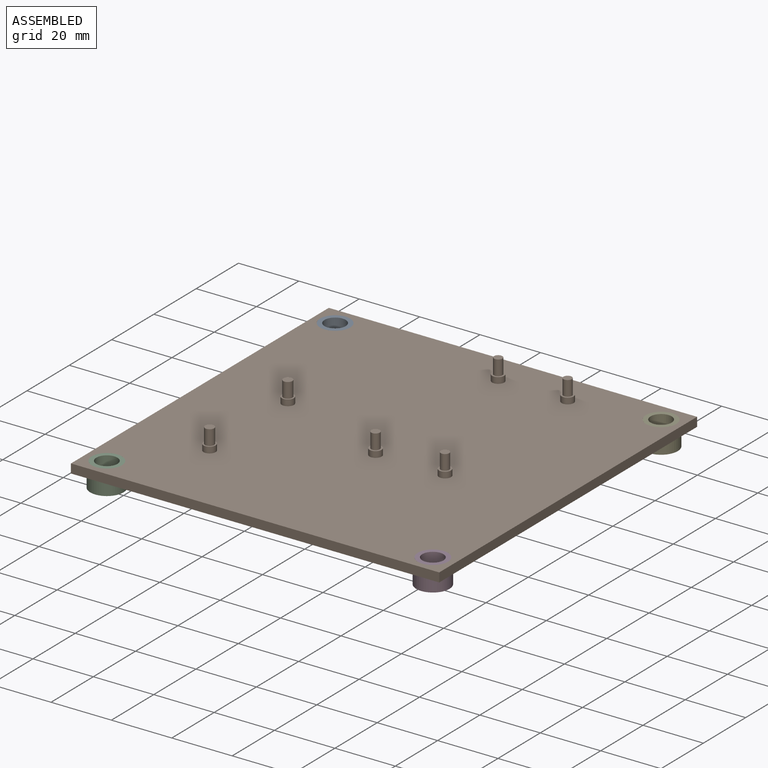
[diagram: assembled view]
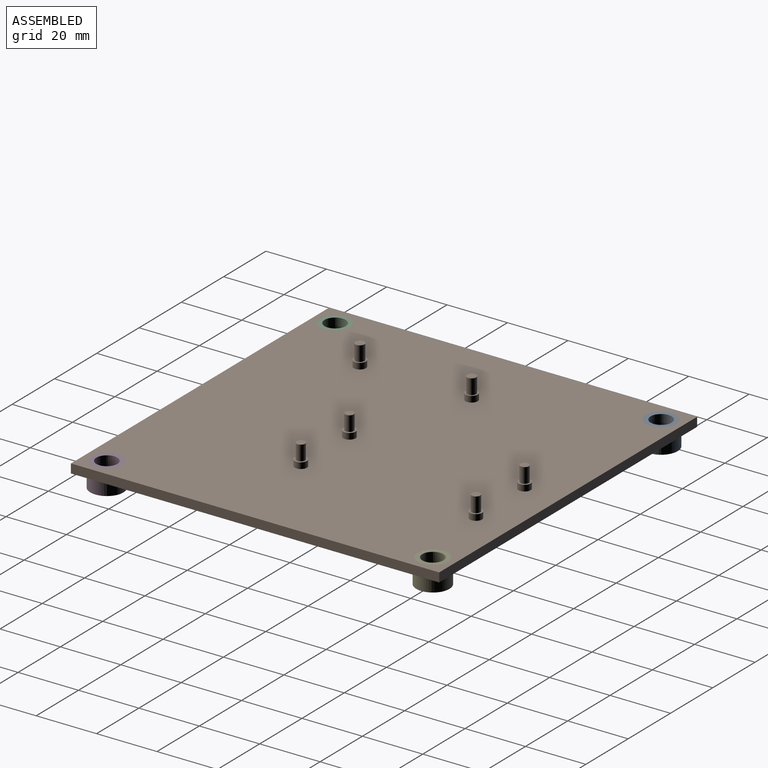
[diagram: assembled view, second angle]
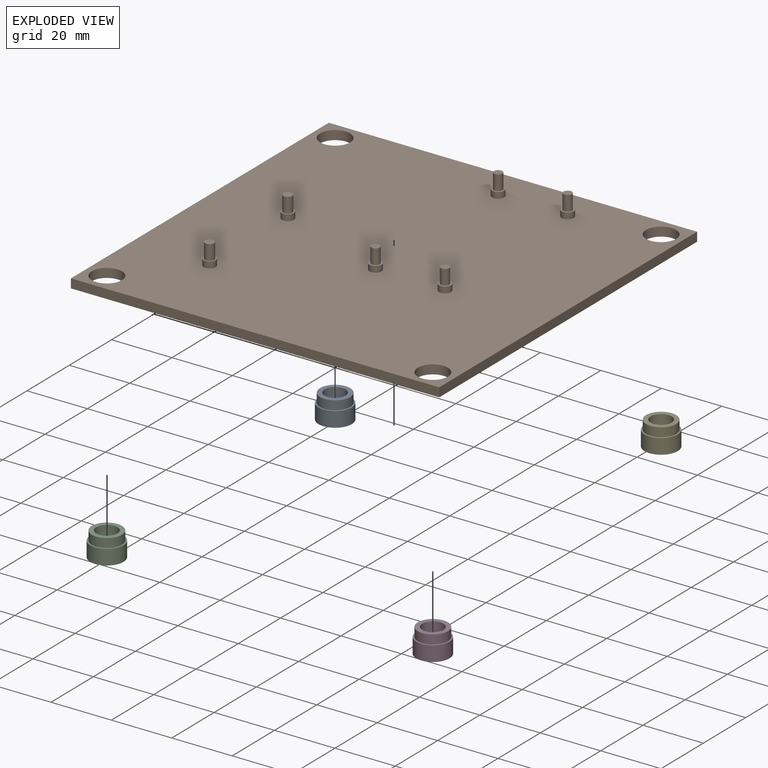
[diagram: exploded view]
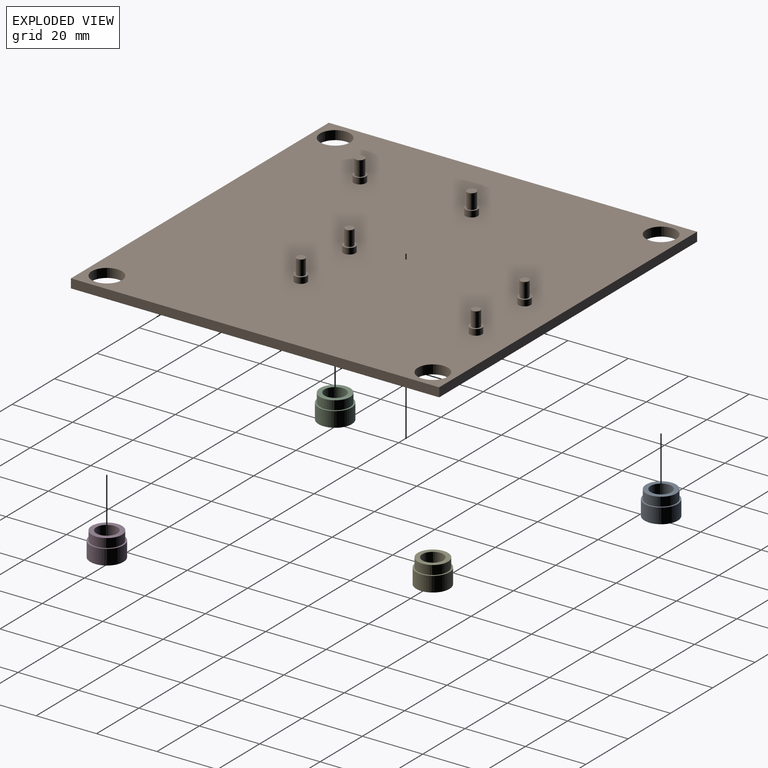
[diagram: exploded view, second angle]
ASSEMBLY  parts=5 mates=8
PART A: 8 faces, bbox 11x11x8 mm
  f0: cylinder r=3.5mm len=7mm, axis (0,0,1), area 131.9mm2, adj f5,f6
  f1: cylinder r=5.5mm len=11mm, axis (0,0,1), area 172.8mm2, adj f2,f3
  f2: plane 11x11mm, normal (0,0,-1), area 85.1mm2, adj f1,f4
  f3: plane 11x11mm, normal (0,0,1), area 16.5mm2, adj f1,f7
  f4: cylinder r=1.78mm len=3.56mm, axis (0,0,1), area 22.3mm2, adj f2,f5
  f5: plane 7x7mm, normal (0,0,1), area 28.6mm2, adj f0,f4
  f6: plane 10x10mm, normal (0,0,1), area 40.1mm2, adj f0,f7
  f7: cylinder r=5mm len=10mm, axis (0,0,-1), area 94.2mm2, adj f3,f6
PART B: 34 faces, bbox 122x122x10 mm
  f0: plane 121.95x3mm, normal (1,0,0), area 365.9mm2, adj f1,f7,f8,f9
  f1: plane 121.95x3mm, normal (0,1,0), area 365.9mm2, adj f0,f2,f8,f9
  f2: plane 121.95x3mm, normal (-1,0,0), area 365.9mm2, adj f1,f7,f8,f9
  f3: cylinder r=5mm len=10mm, axis (0,0,-1), area 94.2mm2, adj f8,f9
  f4: cylinder r=5mm len=10mm, axis (0,0,-1), area 94.2mm2, adj f8,f9
  f5: cylinder r=5mm len=10mm, axis (0,0,-1), area 94.2mm2, adj f8,f9
  f6: cylinder r=5mm len=10mm, axis (0,0,-1), area 94.2mm2, adj f8,f9
  f7: plane 121.95x3mm, normal (0,-1,0), area 365.9mm2, adj f0,f2,f8,f9
  f8: plane 121.95x121.95mm, normal (0,0,1), area 14482.2mm2, adj f0,f1,f2,f3,f4,f5,f6,f7
  f9: plane 121.95x121.95mm, normal (0,0,-1), area 14557.6mm2, adj f0,f1,f2,f3,f4,f5,f6,f7
  f10: plane 4x4mm, normal (0,0,1), area 6.4mm2, adj f11,f13
  f11: cylinder r=2mm len=4mm, axis (0,0,-1), area 25.1mm2, adj f8,f10
  f12: plane 2.8x2.8mm, normal (0,0,1), area 6.2mm2, adj f13
  f13: cylinder r=1.4mm len=5mm, axis (0,0,-1), area 44mm2, adj f10,f12
  f14: plane 4x4mm, normal (0,0,1), area 6.4mm2, adj f15,f17
  f15: cylinder r=2mm len=4mm, axis (0,0,-1), area 25.1mm2, adj f8,f14
  f16: plane 2.8x2.8mm, normal (0,0,1), area 6.2mm2, adj f17
  f17: cylinder r=1.4mm len=5mm, axis (0,0,-1), area 44mm2, adj f14,f16
  f18: plane 4x4mm, normal (0,0,1), area 6.4mm2, adj f19,f21
  f19: cylinder r=2mm len=4mm, axis (0,0,-1), area 25.1mm2, adj f8,f18
  f20: plane 2.8x2.8mm, normal (0,0,1), area 6.2mm2, adj f21
  f21: cylinder r=1.4mm len=5mm, axis (0,0,-1), area 44mm2, adj f18,f20
  f22: plane 4x4mm, normal (0,0,1), area 6.4mm2, adj f23,f25
  f23: cylinder r=2mm len=4mm, axis (0,0,-1), area 25.1mm2, adj f8,f22
  f24: plane 2.8x2.8mm, normal (0,0,1), area 6.2mm2, adj f25
  f25: cylinder r=1.4mm len=5mm, axis (0,0,-1), area 44mm2, adj f22,f24
  f26: plane 4x4mm, normal (0,0,1), area 5.5mm2, adj f27,f29
  f27: cylinder r=2mm len=4mm, axis (0,0,-1), area 25.1mm2, adj f8,f26
  f28: plane 3x3mm, normal (0,0,1), area 7.1mm2, adj f29
  f29: cylinder r=1.5mm len=5mm, axis (0,0,-1), area 47.1mm2, adj f26,f28
  f30: plane 4x4mm, normal (0,0,1), area 5.5mm2, adj f31,f33
  f31: cylinder r=2mm len=4mm, axis (0,0,-1), area 25.1mm2, adj f8,f30
  f32: plane 3x3mm, normal (0,0,1), area 7.1mm2, adj f33
  f33: cylinder r=1.5mm len=5mm, axis (0,0,-1), area 47.1mm2, adj f30,f32
PART C: same geometry as A
PART D: same geometry as A
PART E: same geometry as A
PLACE A rot(axis=(0,0,-1),90deg) t=(-91.82,142.4,35.57)mm
PLACE B t=(16.13,34.45,35.57)mm fixed
PLACE C t=(-91.82,-73.5,35.57)mm
PLACE D rot(axis=(0,0,-1),90deg) t=(16.13,34.45,35.57)mm
PLACE E t=(16.13,34.45,35.57)mm
MATE cylindrical A.f0 <-> B.f5  axis (0,0,1) through (-37.85,88.42,38.57)mm
MATE fastened A.f0 <-> B.f5  axis (0,0,1) through (-37.85,88.42,35.57)mm
MATE cylindrical E.f0 <-> B.f6  axis (0,0,1) through (70.1,88.42,38.57)mm
MATE fastened D.f0 <-> B.f3  axis (0,0,1) through (70.1,-19.53,35.57)mm
MATE fastened E.f0 <-> B.f6  axis (0,0,1) through (70.1,88.42,35.57)mm
MATE cylindrical B.f4 <-> C.f0  axis (0,0,-1) through (-37.85,-19.53,35.57)mm
MATE fastened C.f0 <-> B.f4  axis (0,0,1) through (-37.85,-19.53,35.57)mm
MATE cylindrical B.f3 <-> D.f0  axis (0,0,1) through (70.1,-19.53,38.57)mm
